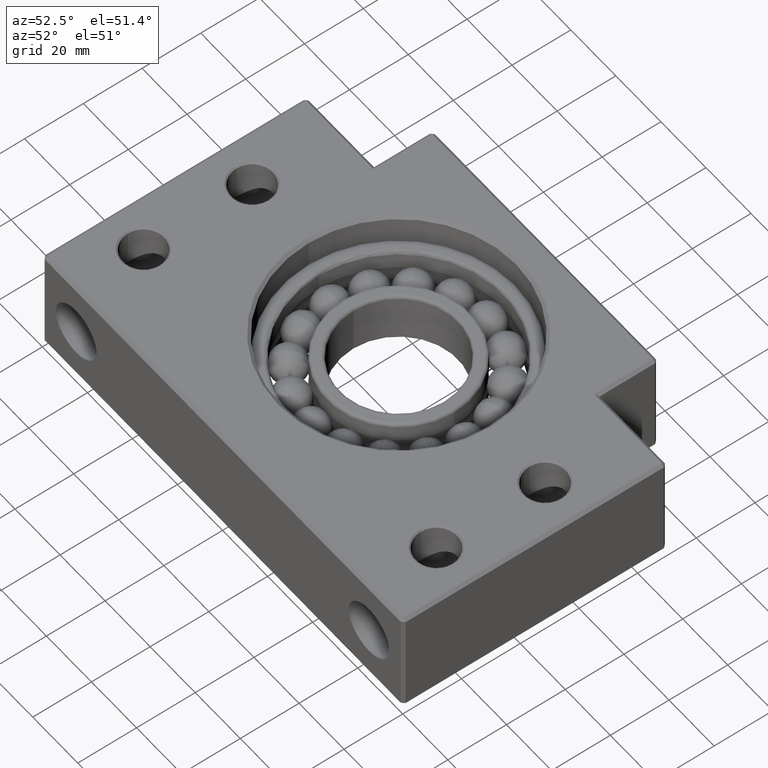
[diagram: clean part render]
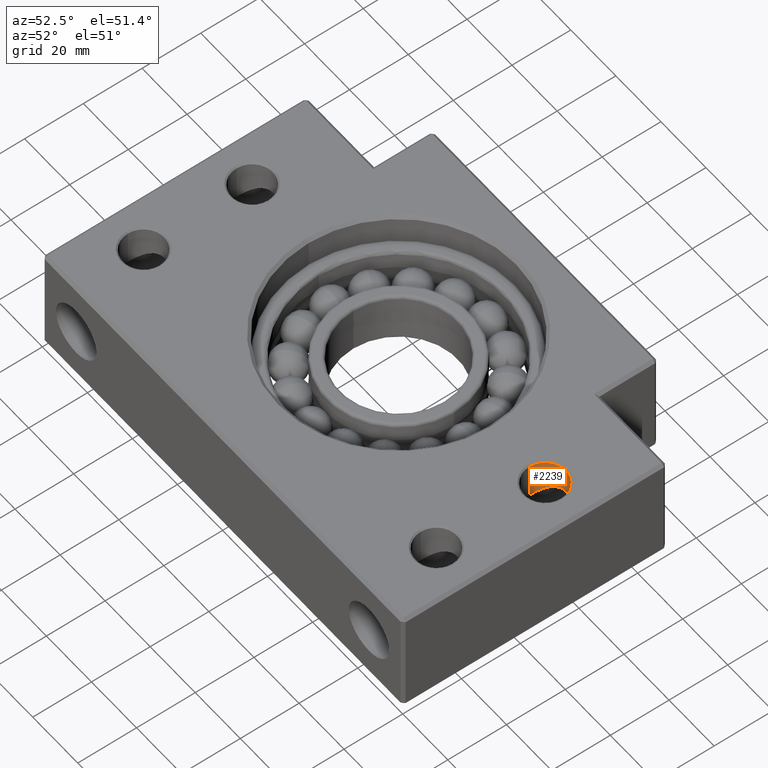
[diagram: same view with one face highlighted and labeled with its STEP entity id]
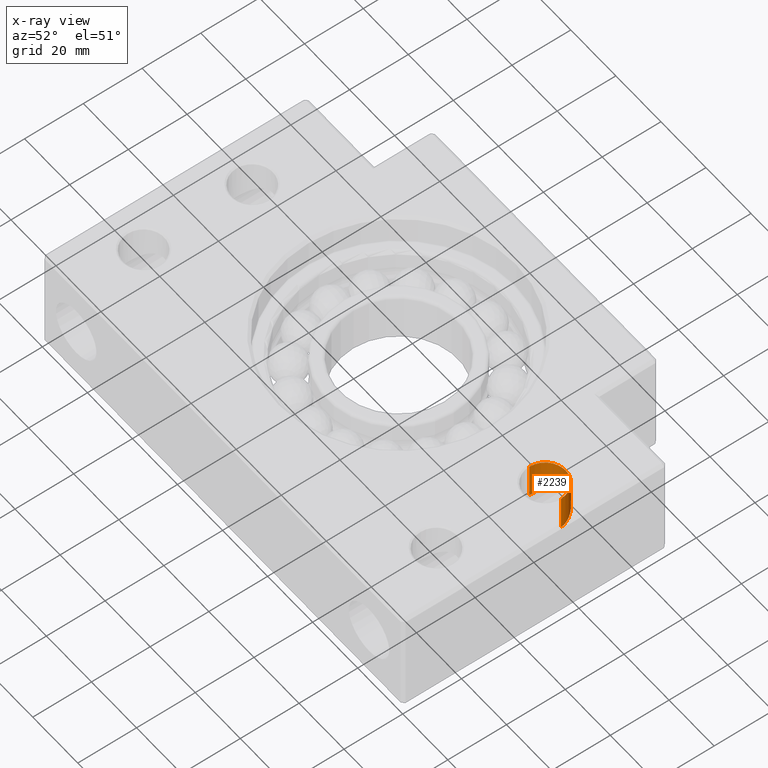
[diagram: x-ray of the same camera — body ghosted, the highlighted face saturated]
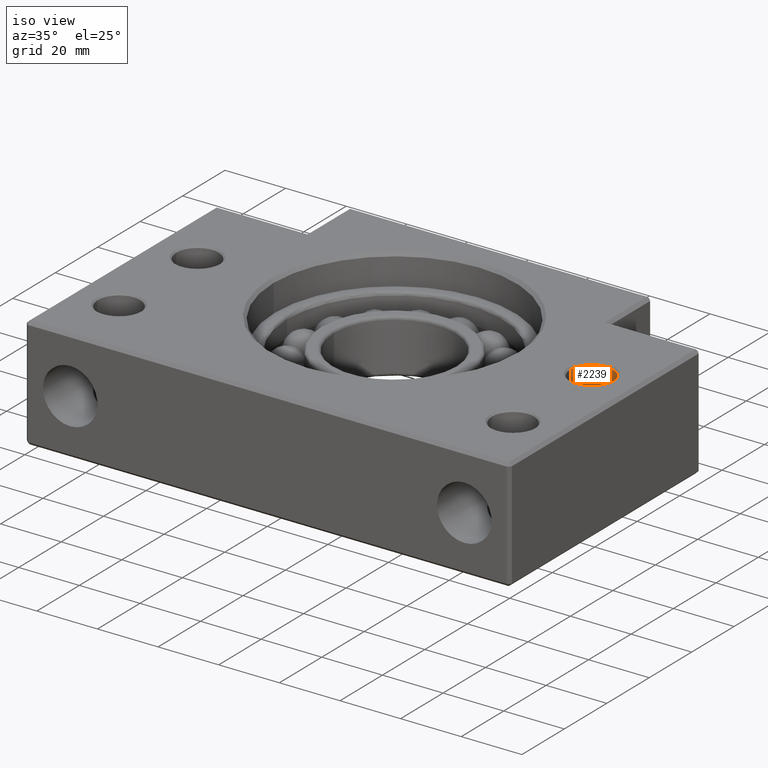
[diagram: same view with one face highlighted and labeled with its STEP entity id]
A machine part, auxiliary view. The second image highlights one B-rep face of the part: STEP entity #2239.
The next image is the same camera in x-ray: the body ghosted, the highlighted face saturated — about 0% of this face is hidden behind the body in this view.
A second angle (iso view) of the same face is appended — the face is thin or edge-on in the first view.
In plain terms, the highlighted cylindrical surface (edge-blend (fillet) strip) has radius 7 mm, axis along (-0, -0, 1).
Its self-contained STEP definition (entity closure, byte-faithful):
#1 = EDGE_CURVE ( 'NONE', #194, #4853, #591, .T. ) ;
#20 = VERTEX_POINT ( 'NONE', #635 ) ;
#194 = VERTEX_POINT ( 'NONE', #907 ) ;
#225 = VERTEX_POINT ( 'NONE', #1065 ) ;
#226 = EDGE_CURVE ( 'NONE', #194, #225, #1063, .T. ) ;
#588 = DIRECTION ( 'NONE',  ( -0.0000000000000000000, -0.0000000000000000000, 1.000000000000000000 ) ) ;
#589 = VECTOR ( 'NONE', #588, 1000.000000000000000 ) ;
#590 = CARTESIAN_POINT ( 'NONE',  ( 58.00000000000000700, 60.00000000000001400, 18.50000000000000000 ) ) ;
#591 = LINE ( 'NONE', #590, #589 ) ;
#635 = CARTESIAN_POINT ( 'NONE',  ( 72.00000000000001400, 59.99999999999998600, 5.656854249492486300 ) ) ;
#907 = CARTESIAN_POINT ( 'NONE',  ( 58.00000000000000700, 60.00000000000001400, 5.656854249492364600 ) ) ;
#1042 = CARTESIAN_POINT ( 'NONE',  ( 63.10184061241636000, 66.74182723264442500, 8.800574441711116700 ) ) ;
#1043 = CARTESIAN_POINT ( 'NONE',  ( 62.65388434775435700, 66.59931699812834400, 8.691884773227206700 ) ) ;
#1044 = CARTESIAN_POINT ( 'NONE',  ( 62.43339442845905300, 66.51666233814009400, 8.629202886626711000 ) ) ;
#1045 = CARTESIAN_POINT ( 'NONE',  ( 61.79153337326128100, 66.23884209304031900, 8.420698805849140100 ) ) ;
#1046 = CARTESIAN_POINT ( 'NONE',  ( 61.39652252999602700, 66.01781754697444200, 8.257280648433701100 ) ) ;
#1047 = CARTESIAN_POINT ( 'NONE',  ( 60.66145912114305400, 65.51146450119993900, 7.895872125757305700 ) ) ;
#1048 = CARTESIAN_POINT ( 'NONE',  ( 60.31912227573273100, 65.22303958796106800, 7.695773733774158700 ) ) ;
#1049 = CARTESIAN_POINT ( 'NONE',  ( 59.70617933391508100, 64.60067620706806200, 7.287730263005218300 ) ) ;
#1050 = CARTESIAN_POINT ( 'NONE',  ( 59.43295415540269700, 64.26585789792491700, 7.078778532829384000 ) ) ;
#1051 = CARTESIAN_POINT ( 'NONE',  ( 58.94727149594536500, 63.54316534998585600, 6.668251840542504600 ) ) ;
#1052 = CARTESIAN_POINT ( 'NONE',  ( 58.73351944360543100, 63.15146083388689400, 6.464841666841351800 ) ) ;
#1053 = CARTESIAN_POINT ( 'NONE',  ( 58.38306625941146400, 62.32737444856969200, 6.105664928053300900 ) ) ;
#1054 = CARTESIAN_POINT ( 'NONE',  ( 58.24404116094286400, 61.89275213985460800, 5.948054040533048000 ) ) ;
#1059 = CARTESIAN_POINT ( 'NONE',  ( 58.05031550503292700, 60.96300359208704100, 5.720508030284534600 ) ) ;
#1060 = CARTESIAN_POINT ( 'NONE',  ( 58.00000000000001400, 60.48769705280987100, 5.656854249492368100 ) ) ;
#1061 = CARTESIAN_POINT ( 'NONE',  ( 58.00000000000000700, 60.00000000000001400, 5.656854249492364600 ) ) ;
#1063 = B_SPLINE_CURVE_WITH_KNOTS ( 'NONE', 3,
 ( #1061, #1060, #1059, #1054, #1053, #1052, #1051, #1050, #1049, #1048, #1047, #1046, #1045, #1044, #1043, #1042, #1110, #1109, #1108, #1107, #1106, #1105 ),
 .UNSPECIFIED., .F., .F.,
 ( 4, 2, 2, 2, 2, 2, 2, 2, 2, 2, 4 ),
 ( 0.02300366645067634200, 0.02444217831269708200, 0.02588069017471782100, 0.02731920203673856400, 0.02875771389875930400, 0.03019622576078004300, 0.03163473762280078600, 0.03235399355381116100, 0.03307324948482154300, 0.03379250541583192500, 0.03451176134684230700 ),
 .UNSPECIFIED. ) ;
#1065 = CARTESIAN_POINT ( 'NONE',  ( 65.00000000000000000, 67.00000000000000000, 8.999999999999978700 ) ) ;
#1105 = CARTESIAN_POINT ( 'NONE',  ( 65.00000000000000000, 67.00000000000000000, 8.999999999999978700 ) ) ;
#1106 = CARTESIAN_POINT ( 'NONE',  ( 64.75948867431186800, 67.00000000000000000, 8.999999999999980500 ) ) ;
#1107 = CARTESIAN_POINT ( 'NONE',  ( 64.51844839929327700, 66.98763910874342300, 8.990375408308343800 ) ) ;
#1108 = CARTESIAN_POINT ( 'NONE',  ( 64.03528094684702400, 66.93745698413093200, 8.951427767397902400 ) ) ;
#1109 = CARTESIAN_POINT ( 'NONE',  ( 63.79645808007107600, 66.89987036331386600, 8.922289080398046600 ) ) ;
#1110 = CARTESIAN_POINT ( 'NONE',  ( 63.33026114067073600, 66.80210969664625500, 8.846904980209872700 ) ) ;
#2083 = DIRECTION ( 'NONE',  ( 1.000000000000000000, 0.0000000000000000000, 0.0000000000000000000 ) ) ;
#2084 = DIRECTION ( 'NONE',  ( -0.0000000000000000000, -0.0000000000000000000, 1.000000000000000000 ) ) ;
#2085 = CARTESIAN_POINT ( 'NONE',  ( 65.00000000000000000, 60.00000000000001400, 18.50000000000000000 ) ) ;
#2086 = AXIS2_PLACEMENT_3D ( 'NONE', #2085, #2084, #2083 ) ;
#2088 = CYLINDRICAL_SURFACE ( 'NONE', #2086, 6.999999999999992000 ) ;
#2089 = FACE_OUTER_BOUND ( 'NONE', #2240, .T. ) ;
#2118 = CARTESIAN_POINT ( 'NONE',  ( 65.24020199987911900, 67.00000000000001400, 8.999999999999978700 ) ) ;
#2119 = CARTESIAN_POINT ( 'NONE',  ( 65.00000000000000000, 67.00000000000000000, 8.999999999999978700 ) ) ;
#2120 = B_SPLINE_CURVE_WITH_KNOTS ( 'NONE', 3,
 ( #2119, #2118, #2135, #2134, #2133, #2132, #2131, #2130, #2129, #2128, #2127, #2126, #2125, #2124, #2123, #2122, #2121, #2200, #2199, #2198, #2197, #2196, #2195, #2194, #2193, #2192 ),
 .UNSPECIFIED., .F., .F.,
 ( 4, 2, 2, 2, 2, 2, 2, 2, 2, 2, 2, 2, 4 ),
 ( 0.03451176134684230700, 0.03523009223026028100, 0.03594842311367826100, 0.03738508488051424400, 0.03810341576393223200, 0.03882174664735022600, 0.04025840841418620900, 0.04169507018102218400, 0.04241340106444017900, 0.04313173194785817300, 0.04385006283127616100, 0.04456839371469414900, 0.04600505548153014500 ),
 .UNSPECIFIED. ) ;
#2121 = CARTESIAN_POINT ( 'NONE',  ( 71.04901002270602800, 63.52961663547945600, 6.665602271406685400 ) ) ;
#2122 = CARTESIAN_POINT ( 'NONE',  ( 70.93440613714125200, 63.71897811118519400, 6.768188936622771700 ) ) ;
#2123 = CARTESIAN_POINT ( 'NONE',  ( 70.56823267410578600, 64.26458467556659600, 7.077924527463658000 ) ) ;
#2124 = CARTESIAN_POINT ( 'NONE',  ( 70.29402542489963000, 64.60046749305919900, 7.287593576072341200 ) ) ;
#2125 = CARTESIAN_POINT ( 'NONE',  ( 69.68068571287564300, 65.22323535861247000, 7.695901934586742300 ) ) ;
#2126 = CARTESIAN_POINT ( 'NONE',  ( 69.33881830911772700, 65.51132689791970200, 7.895767884207005600 ) ) ;
#2127 = CARTESIAN_POINT ( 'NONE',  ( 68.78625208976916400, 65.89188528711613900, 8.167399758363780300 ) ) ;
#2128 = CARTESIAN_POINT ( 'NONE',  ( 68.59496377430842500, 66.01065793542386500, 8.253629235633109600 ) ) ;
#2129 = CARTESIAN_POINT ( 'NONE',  ( 68.19703003806722600, 66.23143420818669800, 8.415768475521602500 ) ) ;
#2130 = CARTESIAN_POINT ( 'NONE',  ( 67.98933822780365700, 66.33387854710208800, 8.492013866932593300 ) ) ;
#2131 = CARTESIAN_POINT ( 'NONE',  ( 67.34840019633270500, 66.61072299196223400, 8.699815328120527300 ) ) ;
#2132 = CARTESIAN_POINT ( 'NONE',  ( 66.90156799123980100, 66.75376676998288900, 8.809623772371727700 ) ) ;
#2133 = CARTESIAN_POINT ( 'NONE',  ( 66.19845647999112300, 66.90079949482128500, 8.923007341954742000 ) ) ;
#2134 = CARTESIAN_POINT ( 'NONE',  ( 65.95816936323302600, 66.93827877618662100, 8.952065119263689800 ) ) ;
#2135 = CARTESIAN_POINT ( 'NONE',  ( 65.47987634244297800, 66.98766911070374900, 8.990399163782413400 ) ) ;
#2136 = DIRECTION ( 'NONE',  ( 1.000000000000000000, 0.0000000000000000000, 0.0000000000000000000 ) ) ;
#2137 = DIRECTION ( 'NONE',  ( 0.0000000000000000000, 0.0000000000000000000, 1.000000000000000000 ) ) ;
#2138 = CARTESIAN_POINT ( 'NONE',  ( 65.00000000000000000, 60.00000000000001400, 17.99999999999996800 ) ) ;
#2139 = AXIS2_PLACEMENT_3D ( 'NONE', #2138, #2137, #2136 ) ;
#2140 = CIRCLE ( 'NONE', #2139, 6.999999999999992000 ) ;
#2192 = CARTESIAN_POINT ( 'NONE',  ( 72.00000000000001400, 59.99999999999998600, 5.656854249492486300 ) ) ;
#2193 = CARTESIAN_POINT ( 'NONE',  ( 72.00000000000001400, 60.48948227606637600, 5.656854249492362800 ) ) ;
#2194 = CARTESIAN_POINT ( 'NONE',  ( 71.94935463065469600, 60.96290989255637500, 5.720855046783149200 ) ) ;
#2195 = CARTESIAN_POINT ( 'NONE',  ( 71.80610344441959100, 61.65291778827814500, 5.889175151588418100 ) ) ;
#2196 = CARTESIAN_POINT ( 'NONE',  ( 71.74649380797019700, 61.88085275113697700, 5.957800789057138500 ) ) ;
#2197 = CARTESIAN_POINT ( 'NONE',  ( 71.60864146737897300, 62.31919031734757700, 6.110354073104852000 ) ) ;
#2198 = CARTESIAN_POINT ( 'NONE',  ( 71.53025695712996400, 62.53093541358445200, 6.194463962902924300 ) ) ;
#2199 = CARTESIAN_POINT ( 'NONE',  ( 71.35561947331581200, 62.94210657595690600, 6.373518716082658700 ) ) ;
#2200 = CARTESIAN_POINT ( 'NONE',  ( 71.25935738280871600, 63.14152208372456000, 6.468479036810566500 ) ) ;
#2239 = ADVANCED_FACE ( 'NONE', ( #2089 ), #2088, .F. ) ;
#2240 = EDGE_LOOP ( 'NONE', ( #2264, #2265, #2257, #2261, #2267 ) ) ;
#2257 = ORIENTED_EDGE ( 'NONE', *, *, #2268, .T. ) ;
#2261 = ORIENTED_EDGE ( 'NONE', *, *, #5164, .T. ) ;
#2264 = ORIENTED_EDGE ( 'NONE', *, *, #1, .F. ) ;
#2265 = ORIENTED_EDGE ( 'NONE', *, *, #226, .T. ) ;
#2267 = ORIENTED_EDGE ( 'NONE', *, *, #2269, .T. ) ;
#2268 = EDGE_CURVE ( 'NONE', #225, #20, #2120, .T. ) ;
#2269 = EDGE_CURVE ( 'NONE', #4854, #4853, #2140, .T. ) ;
#3887 = CARTESIAN_POINT ( 'NONE',  ( 72.00000000000000000, 60.00000000000001400, 17.99999999999996800 ) ) ;
#3888 = CARTESIAN_POINT ( 'NONE',  ( 58.00000000000000700, 60.00000000000001400, 17.99999999999996800 ) ) ;
#4411 = DIRECTION ( 'NONE',  ( -0.0000000000000000000, -0.0000000000000000000, 1.000000000000000000 ) ) ;
#4412 = VECTOR ( 'NONE', #4411, 1000.000000000000000 ) ;
#4413 = CARTESIAN_POINT ( 'NONE',  ( 72.00000000000000000, 60.00000000000001400, 18.50000000000000000 ) ) ;
#4414 = LINE ( 'NONE', #4413, #4412 ) ;
#4853 = VERTEX_POINT ( 'NONE', #3888 ) ;
#4854 = VERTEX_POINT ( 'NONE', #3887 ) ;
#5164 = EDGE_CURVE ( 'NONE', #20, #4854, #4414, .T. ) ;